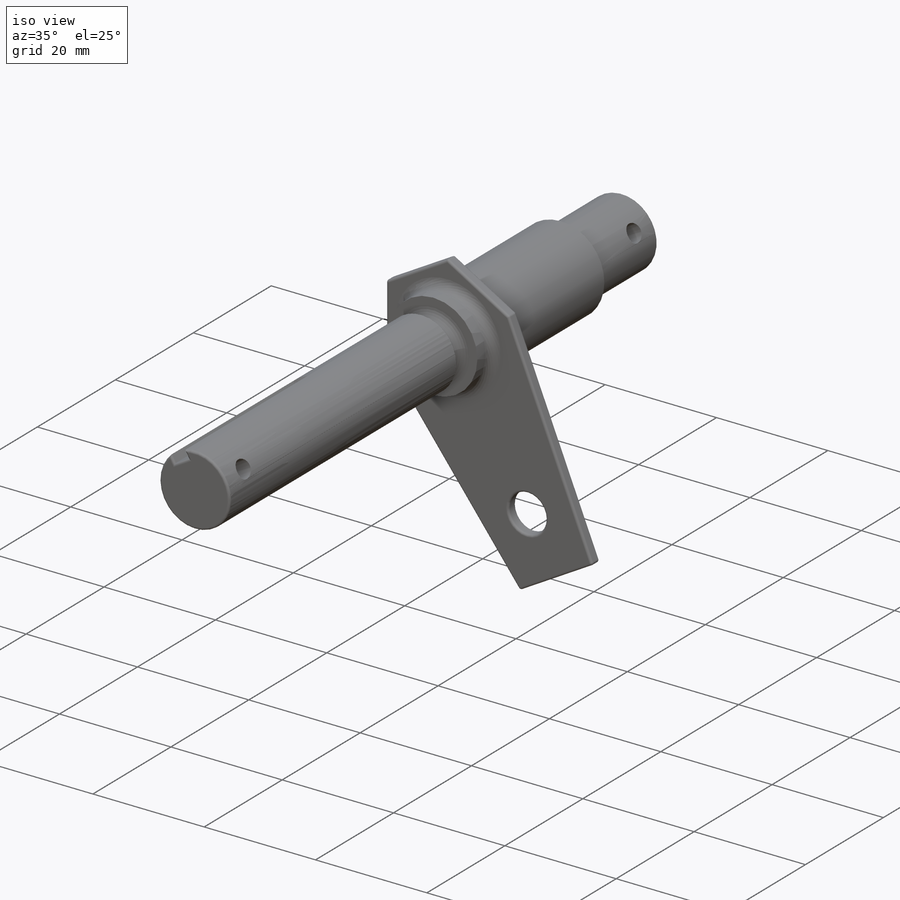
[diagram: iso view]
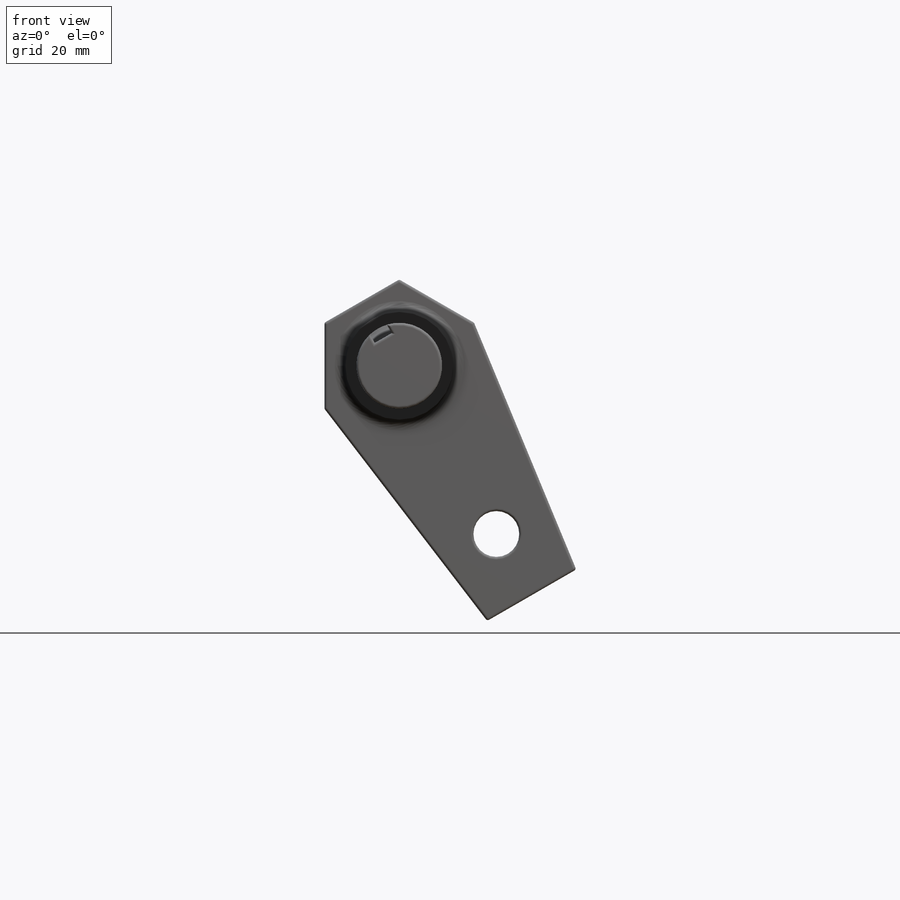
[diagram: front view]
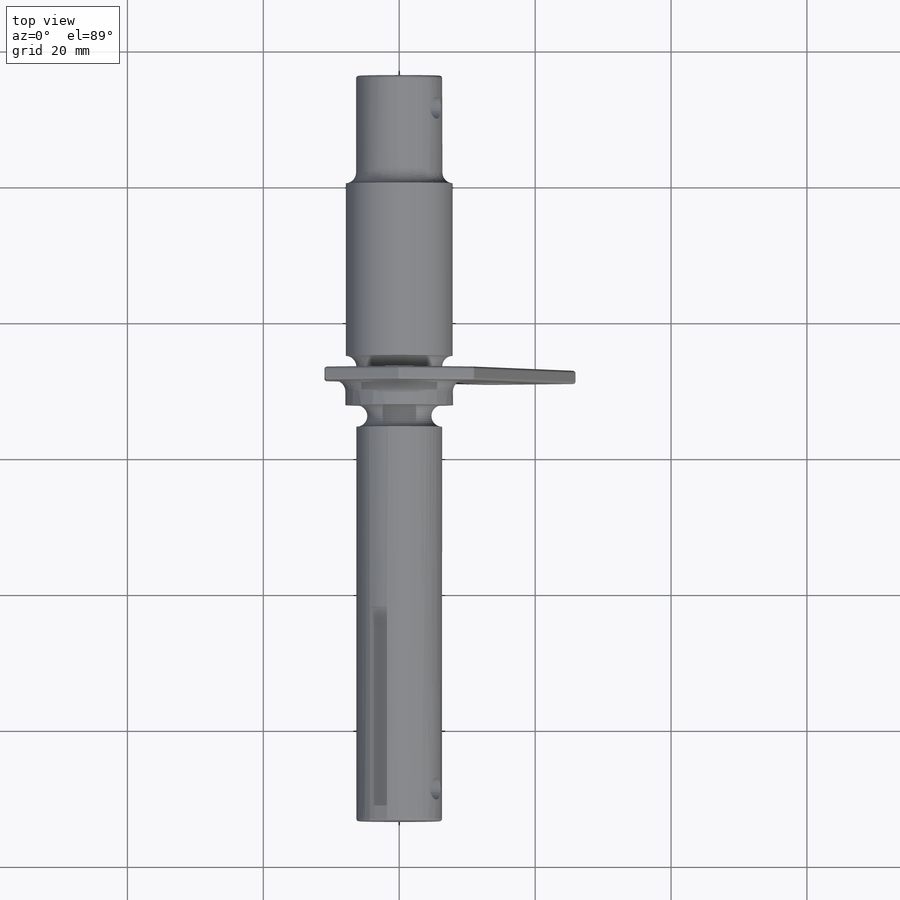
[diagram: top view]
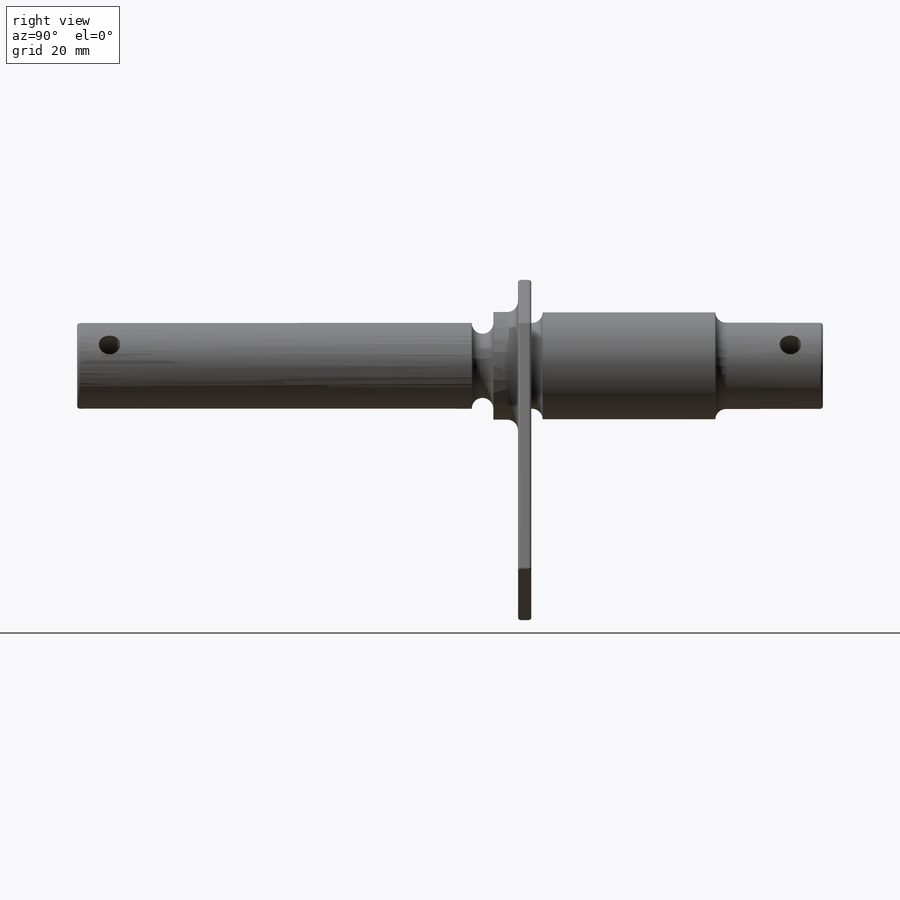
[diagram: right view]
SOLIDWORKS PART (.sldprt)
format: sldprt  version: not decoded by parser v0  size: 479,232 bytes
history: native  units: mm
features: sketch x10, fillet x7, extrude x5, cut_extrude x4, thread x2, plane x2, material x1 (+16 scaffold rows collapsed)
feature tree (47):
  scaffold x16  (default folders/planes/origin — collapsed)
  material  "Alloy Steel"
  sketch  "Sketch1"  dims[D1=15.7226mm]
  extrude  "Extrude1"  Depth=25.4mm
  sketch  "Sketch2"  dims[D1=12.7mm]
  extrude  "Extrude2"  [1 undecoded]
  thread  "Cosmetic Thread2"  Diameter=11.14298mm  [1 undecoded]
  sketch  "Sketch3"  dims[D1=12.6238mm]
  extrude  "Extrude3"  [1 undecoded]
  thread  "Cosmetic Thread1"  Diameter=14.986mm  [1 undecoded]
  plane  "Plane1"  Offset=1.6764mm
  sketch  "Sketch4"  dims[c1.D1=25.4mm c1.D2=12.7mm c2.D2=7.5deg c3.D2=~31.067203mm c4.D2=~7.613495deg c5.D2=~31.553647mm c6.D2=187.5deg c7.D2=~4.118577mm c8.D2=82.5deg c8.D3=~33.847891mm c9.D3=82.5deg c9.D4=49.9745mm]
  extrude  "Extrude4"  Depth=1.9558mm
  sketch  "Sketch6"  dims[D1=15.8496mm]
  extrude  "Extrude5"  Depth=3.6322mm
  fillet  "Fillet2"  Radius=1.5875mm
  fillet  "Fillet3"  Radius=1.5875mm
  fillet  "Fillet4"  Radius=1.5875mm
  sketch  "Sketch8"  dims[D1=1.5875mm]
  cut_extrude  "Extrude6"  Depth=3.175mm
  fillet  "Fillet5"  Radius=1.5875mm
  sketch  "Sketch9"  dims[D1=6.7437mm D2=28.575mm]
  cut_extrude  "Extrude7"  [1 undecoded]
  sketch  "Sketch11"  dims[D2=~1.44145mm D1=1.6002mm]
  cut_extrude  "Extrude8"  Depth=31.5214mm
  sketch  "3DSketch1"
  plane  "Plane2"
  sketch  "Sketch14"  dims[c1.D1=3.175mm c1.D2=3.175mm c1.D4=3.175mm c2.D2=93.9038mm c2.D3=4.7625mm c2.D4=4.7625mm]
  cut_extrude  "Extrude10"  [1 undecoded]
  fillet  "Fillet8"  Radius=2.54mm
  fillet  "Fillet6"  Radius=0.396875mm
  fillet  "Fillet7"  Radius=0.396875mm
decode coverage: 23 of 28 modeling features carry decoded parameters
note: ~ marks probable driven/reference dimensions
note: 6 parameter values undecoded
summary: no parameter record found for 4 features
note: suppression state not decoded; provenance and decode notes live in map.json
